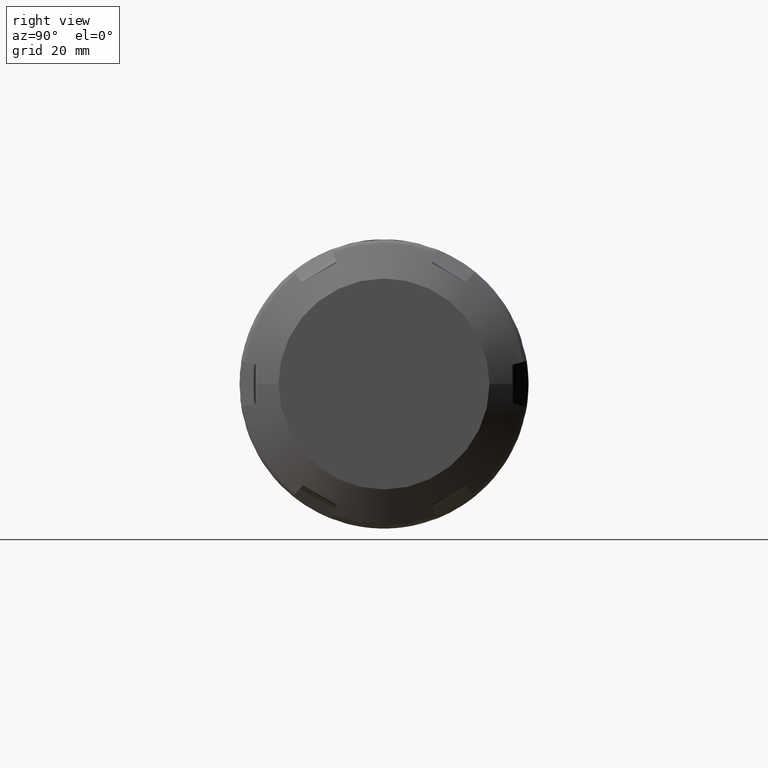
[diagram: clean part render]
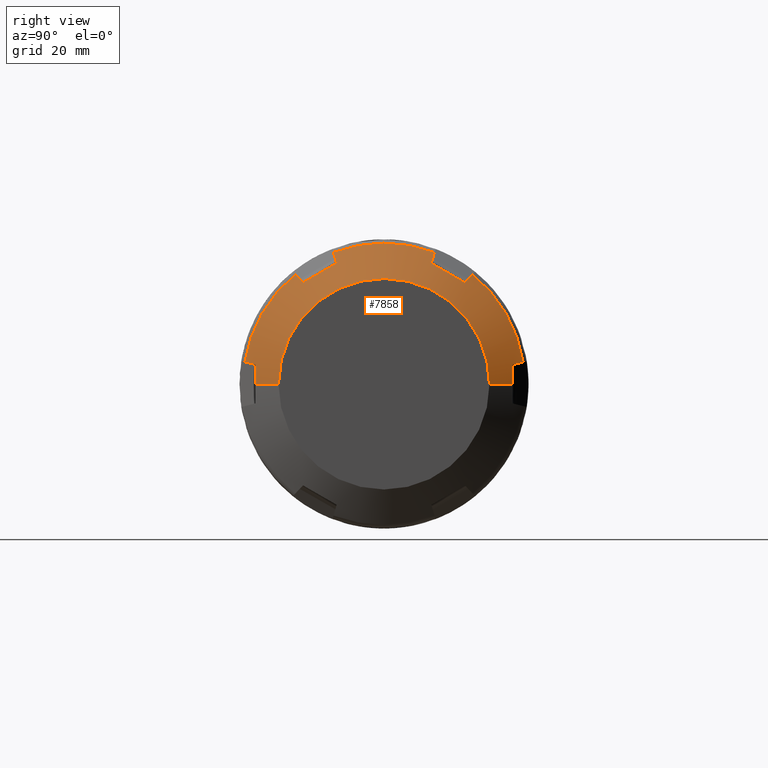
[diagram: same view with one face highlighted and labeled with its STEP entity id]
A machine part, right view. The second image highlights one B-rep face of the part: STEP entity #7858.
In plain terms, the highlighted conical surface has half-angle 60 deg.
Its self-contained STEP definition (entity closure, byte-faithful):
#6795=DIRECTION('',(-5.E-1,-8.660254037844E-1,0.E0));
#6796=VECTOR('',#6795,4.561067126598E0);
#6797=CARTESIAN_POINT('',(2.25E1,-1.825E1,0.E0));
#6798=LINE('',#6797,#6796);
#6804=DIRECTION('',(-5.E-1,8.660254037844E-1,0.E0));
#6805=VECTOR('',#6804,4.561067126598E0);
#6806=CARTESIAN_POINT('',(2.25E1,1.825E1,0.E0));
#6807=LINE('',#6806,#6805);
#7088=CARTESIAN_POINT('',(2.007435737753E1,-2.22E1,3.35E0));
#7089=CARTESIAN_POINT('',(2.010642291935E1,-2.22E1,2.977782663007E0));
#7090=CARTESIAN_POINT('',(2.016009585532E1,-2.22E1,2.233360618265E0));
#7091=CARTESIAN_POINT('',(2.020864465134E1,-2.22E1,1.116836975823E0));
#7092=CARTESIAN_POINT('',(2.021946643670E1,-2.22E1,3.722962341463E-1));
#7093=CARTESIAN_POINT('',(2.021946643670E1,-2.22E1,-4.505137681520E-14));
#7095=CARTESIAN_POINT('',(1.896372960121E1,-2.407423620780E1,3.817299570546E0));
#7096=CARTESIAN_POINT('',(1.915154885340E1,-2.375738600462E1,3.738299942188E0));
#7097=CARTESIAN_POINT('',(1.952447514954E1,-2.312816444792E1,3.581417388109E0));
#7098=CARTESIAN_POINT('',(1.989196990744E1,-2.250789661449E1,3.426767247974E0));
#7099=CARTESIAN_POINT('',(2.007435737753E1,-2.22E1,3.35E0));
#7101=CARTESIAN_POINT('',(1.896372960121E1,0.E0,0.E0));
#7102=DIRECTION('',(-1.E0,0.E0,0.E0));
#7103=DIRECTION('',(0.E0,-9.876609726275E-1,1.566071618686E-1));
#7104=AXIS2_PLACEMENT_3D('',#7101,#7102,#7103);
#7106=CARTESIAN_POINT('',(2.007435737753E1,-1.400118510268E1,1.755076396401E1));
#7107=CARTESIAN_POINT('',(1.989202963548E1,-1.422154361045E1,1.777895187872E1));
#7108=CARTESIAN_POINT('',(1.952459463873E1,-1.466553630405E1,1.823871977204E1));
#7109=CARTESIAN_POINT('',(1.915160861205E1,-1.511608354504E1,1.870527509788E1));
#7110=CARTESIAN_POINT('',(1.896372960121E1,-1.534299650585E1,1.894025034738E1));
#7112=CARTESIAN_POINT('',(2.007435737753E1,-8.198814897322E0,2.090076396401E1));
#7113=CARTESIAN_POINT('',(2.013850261850E1,-8.843656557694E0,2.052846445781E1));
#7114=CARTESIAN_POINT('',(2.022485531472E1,-1.013317723897E1,1.978395934535E1));
#7115=CARTESIAN_POINT('',(2.022485360844E1,-1.206686210227E1,1.866754586900E1));
#7116=CARTESIAN_POINT('',(2.013850094754E1,-1.335636024026E1,1.792305377191E1));
#7117=CARTESIAN_POINT('',(2.007435737753E1,-1.400118510268E1,1.755076396401E1));
#7119=CARTESIAN_POINT('',(1.896372960121E1,-8.731239701949E0,2.275754991793E1));
#7120=CARTESIAN_POINT('',(1.915154885340E1,-8.641230285410E0,2.244364977861E1));
#7121=CARTESIAN_POINT('',(1.952447514954E1,-8.462483784300E0,2.182028664885E1));
#7122=CARTESIAN_POINT('',(1.989196990744E1,-8.286280817645E0,2.120579387789E1));
#7123=CARTESIAN_POINT('',(2.007435737753E1,-8.198814897322E0,2.090076396401E1));
#7125=CARTESIAN_POINT('',(1.896372960121E1,0.E0,0.E0));
#7126=DIRECTION('',(-1.E0,0.E0,0.E0));
#7127=DIRECTION('',(0.E0,-3.582047057210E-1,9.336430735561E-1));
#7128=AXIS2_PLACEMENT_3D('',#7125,#7126,#7127);
#7130=CARTESIAN_POINT('',(2.007435737753E1,8.198814897322E0,2.090076396401E1));
#7131=CARTESIAN_POINT('',(1.989202963548E1,8.286252174404E0,2.120569398704E1));
#7132=CARTESIAN_POINT('',(1.952459463873E1,8.462426503065E0,2.182008688545E1));
#7133=CARTESIAN_POINT('',(1.915160861205E1,8.641201647020E0,2.244354990467E1));
#7134=CARTESIAN_POINT('',(1.896372960121E1,8.731239701949E0,2.275754991793E1));
#7136=CARTESIAN_POINT('',(2.007435737753E1,1.400118510268E1,1.755076396401E1));
#7137=CARTESIAN_POINT('',(2.013850261850E1,1.335634344231E1,1.792306347021E1));
#7138=CARTESIAN_POINT('',(2.022485531472E1,1.206682276103E1,1.866756858268E1));
#7139=CARTESIAN_POINT('',(2.022485360844E1,1.013313789773E1,1.978398205903E1));
#7140=CARTESIAN_POINT('',(2.013850094754E1,8.843639759743E0,2.052847415612E1));
#7141=CARTESIAN_POINT('',(2.007435737753E1,8.198814897322E0,2.090076396401E1));
#7143=CARTESIAN_POINT('',(1.896372960121E1,1.534299650585E1,1.894025034738E1));
#7144=CARTESIAN_POINT('',(1.915154885340E1,1.511615571921E1,1.870534983642E1));
#7145=CARTESIAN_POINT('',(1.952447514954E1,1.466568066362E1,1.823886926074E1));
#7146=CARTESIAN_POINT('',(1.989196990744E1,1.422161579685E1,1.777902662992E1));
#7147=CARTESIAN_POINT('',(2.007435737753E1,1.400118510268E1,1.755076396401E1));
#7149=CARTESIAN_POINT('',(1.896372960121E1,0.E0,0.E0));
#7150=DIRECTION('',(-1.E0,0.E0,0.E0));
#7151=DIRECTION('',(0.E0,6.294562669065E-1,7.770359116876E-1));
#7152=AXIS2_PLACEMENT_3D('',#7149,#7150,#7151);
#7154=CARTESIAN_POINT('',(2.007435737753E1,2.22E1,3.35E0));
#7155=CARTESIAN_POINT('',(1.989202963548E1,2.250779578486E1,3.426742108322E0));
#7156=CARTESIAN_POINT('',(1.952459463873E1,2.312796280711E1,3.581367113410E0));
#7157=CARTESIAN_POINT('',(1.915160861205E1,2.375728519206E1,3.738274806794E0));
#7158=CARTESIAN_POINT('',(1.896372960121E1,2.407423620780E1,3.817299570546E0));
#7160=CARTESIAN_POINT('',(2.021946643670E1,2.22E1,0.E0));
#7161=CARTESIAN_POINT('',(2.021946643670E1,2.22E1,3.723412104007E-1));
#7162=CARTESIAN_POINT('',(2.020864224929E1,2.22E1,1.116942255784E0));
#7163=CARTESIAN_POINT('',(2.016008769471E1,2.22E1,2.233495806650E0));
#7164=CARTESIAN_POINT('',(2.010641792581E1,2.22E1,2.977840628173E0));
#7165=CARTESIAN_POINT('',(2.007435737753E1,2.22E1,3.35E0));
#7167=CARTESIAN_POINT('',(2.25E1,0.E0,0.E0));
#7168=DIRECTION('',(1.E0,0.E0,0.E0));
#7169=DIRECTION('',(0.E0,1.E0,0.E0));
#7170=AXIS2_PLACEMENT_3D('',#7167,#7168,#7169);
#7430=CARTESIAN_POINT('',(2.25E1,1.825E1,0.E0));
#7431=CARTESIAN_POINT('',(2.25E1,-1.825E1,0.E0));
#7432=VERTEX_POINT('',#7430);
#7433=VERTEX_POINT('',#7431);
#7442=VERTEX_POINT('',#7154);
#7443=VERTEX_POINT('',#7158);
#7444=VERTEX_POINT('',#7160);
#7458=VERTEX_POINT('',#7130);
#7459=VERTEX_POINT('',#7134);
#7460=VERTEX_POINT('',#7136);
#7461=VERTEX_POINT('',#7143);
#7473=VERTEX_POINT('',#7106);
#7474=VERTEX_POINT('',#7110);
#7475=VERTEX_POINT('',#7112);
#7476=VERTEX_POINT('',#7119);
#7488=VERTEX_POINT('',#7088);
#7489=VERTEX_POINT('',#7093);
#7490=VERTEX_POINT('',#7095);
#7827=CARTESIAN_POINT('',(2.073186480061E1,0.E0,0.E0));
#7828=DIRECTION('',(-1.E0,0.E0,0.E0));
#7829=DIRECTION('',(0.E0,1.E0,0.E0));
#7830=AXIS2_PLACEMENT_3D('',#7827,#7828,#7829);
#7831=CONICAL_SURFACE('',#7830,2.13125E1,6.E1);
#7833=ORIENTED_EDGE('',*,*,#7832,.F.);
#7835=ORIENTED_EDGE('',*,*,#7834,.F.);
#7836=ORIENTED_EDGE('',*,*,#7734,.T.);
#7838=ORIENTED_EDGE('',*,*,#7837,.F.);
#7840=ORIENTED_EDGE('',*,*,#7839,.F.);
#7842=ORIENTED_EDGE('',*,*,#7841,.F.);
#7843=ORIENTED_EDGE('',*,*,#7718,.T.);
#7845=ORIENTED_EDGE('',*,*,#7844,.F.);
#7846=ORIENTED_EDGE('',*,*,#7820,.F.);
#7847=ORIENTED_EDGE('',*,*,#7791,.F.);
#7848=ORIENTED_EDGE('',*,*,#7702,.T.);
#7850=ORIENTED_EDGE('',*,*,#7849,.F.);
#7852=ORIENTED_EDGE('',*,*,#7851,.F.);
#7853=ORIENTED_EDGE('',*,*,#7578,.F.);
#7854=ORIENTED_EDGE('',*,*,#7545,.T.);
#7855=ORIENTED_EDGE('',*,*,#7575,.T.);
#7856=EDGE_LOOP('',(#7833,#7835,#7836,#7838,#7840,#7842,#7843,#7845,#7846,#7847,
#7848,#7850,#7852,#7853,#7854,#7855));
#7857=FACE_OUTER_BOUND('',#7856,.F.);
#7858=ADVANCED_FACE('',(#7857),#7831,.T.);
#7094=B_SPLINE_CURVE_WITH_KNOTS('',3,(#7088,#7089,#7090,#7091,#7092,#7093),
.UNSPECIFIED.,.F.,.F.,(4,1,1,4),(0.E0,3.333333333333E-1,6.666666666667E-1,1.E0),
.UNSPECIFIED.);
#7100=B_SPLINE_CURVE_WITH_KNOTS('',3,(#7095,#7096,#7097,#7098,#7099),
.UNSPECIFIED.,.F.,.F.,(4,1,4),(0.E0,5.E-1,1.E0),.UNSPECIFIED.);
#7105=CIRCLE('',#7104,2.4375E1);
#7111=B_SPLINE_CURVE_WITH_KNOTS('',3,(#7106,#7107,#7108,#7109,#7110),
.UNSPECIFIED.,.F.,.F.,(4,1,4),(0.E0,5.E-1,1.E0),.UNSPECIFIED.);
#7118=B_SPLINE_CURVE_WITH_KNOTS('',3,(#7112,#7113,#7114,#7115,#7116,#7117),
.UNSPECIFIED.,.F.,.F.,(4,1,1,4),(0.E0,3.333333333333E-1,6.666666666667E-1,1.E0),
.UNSPECIFIED.);
#7124=B_SPLINE_CURVE_WITH_KNOTS('',3,(#7119,#7120,#7121,#7122,#7123),
.UNSPECIFIED.,.F.,.F.,(4,1,4),(0.E0,5.E-1,1.E0),.UNSPECIFIED.);
#7129=CIRCLE('',#7128,2.4375E1);
#7135=B_SPLINE_CURVE_WITH_KNOTS('',3,(#7130,#7131,#7132,#7133,#7134),
.UNSPECIFIED.,.F.,.F.,(4,1,4),(0.E0,5.E-1,1.E0),.UNSPECIFIED.);
#7142=B_SPLINE_CURVE_WITH_KNOTS('',3,(#7136,#7137,#7138,#7139,#7140,#7141),
.UNSPECIFIED.,.F.,.F.,(4,1,1,4),(0.E0,3.333333333333E-1,6.666666666667E-1,1.E0),
.UNSPECIFIED.);
#7148=B_SPLINE_CURVE_WITH_KNOTS('',3,(#7143,#7144,#7145,#7146,#7147),
.UNSPECIFIED.,.F.,.F.,(4,1,4),(0.E0,5.E-1,1.E0),.UNSPECIFIED.);
#7153=CIRCLE('',#7152,2.4375E1);
#7159=B_SPLINE_CURVE_WITH_KNOTS('',3,(#7154,#7155,#7156,#7157,#7158),
.UNSPECIFIED.,.F.,.F.,(4,1,4),(0.E0,5.E-1,1.E0),.UNSPECIFIED.);
#7166=B_SPLINE_CURVE_WITH_KNOTS('',3,(#7160,#7161,#7162,#7163,#7164,#7165),
.UNSPECIFIED.,.F.,.F.,(4,1,1,4),(0.E0,3.333333333333E-1,6.666666666667E-1,1.E0),
.UNSPECIFIED.);
#7171=CIRCLE('',#7170,1.825E1);
#7545=EDGE_CURVE('',#7432,#7433,#7171,.T.);
#7575=EDGE_CURVE('',#7433,#7489,#6798,.T.);
#7578=EDGE_CURVE('',#7432,#7444,#6807,.T.);
#7702=EDGE_CURVE('',#7461,#7443,#7153,.T.);
#7718=EDGE_CURVE('',#7476,#7459,#7129,.T.);
#7734=EDGE_CURVE('',#7490,#7474,#7105,.T.);
#7791=EDGE_CURVE('',#7461,#7460,#7148,.T.);
#7820=EDGE_CURVE('',#7460,#7458,#7142,.T.);
#7832=EDGE_CURVE('',#7488,#7489,#7094,.T.);
#7834=EDGE_CURVE('',#7490,#7488,#7100,.T.);
#7837=EDGE_CURVE('',#7473,#7474,#7111,.T.);
#7839=EDGE_CURVE('',#7475,#7473,#7118,.T.);
#7841=EDGE_CURVE('',#7476,#7475,#7124,.T.);
#7844=EDGE_CURVE('',#7458,#7459,#7135,.T.);
#7849=EDGE_CURVE('',#7442,#7443,#7159,.T.);
#7851=EDGE_CURVE('',#7444,#7442,#7166,.T.);